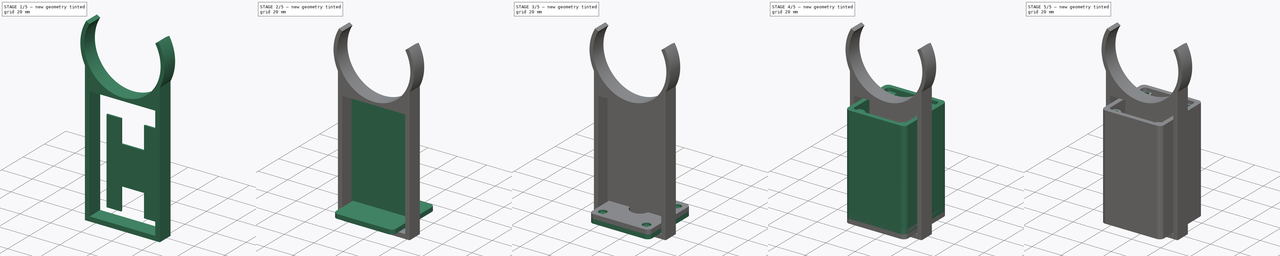
[diagram: build sequence overview — one tinted view per stage of 5, left to right]
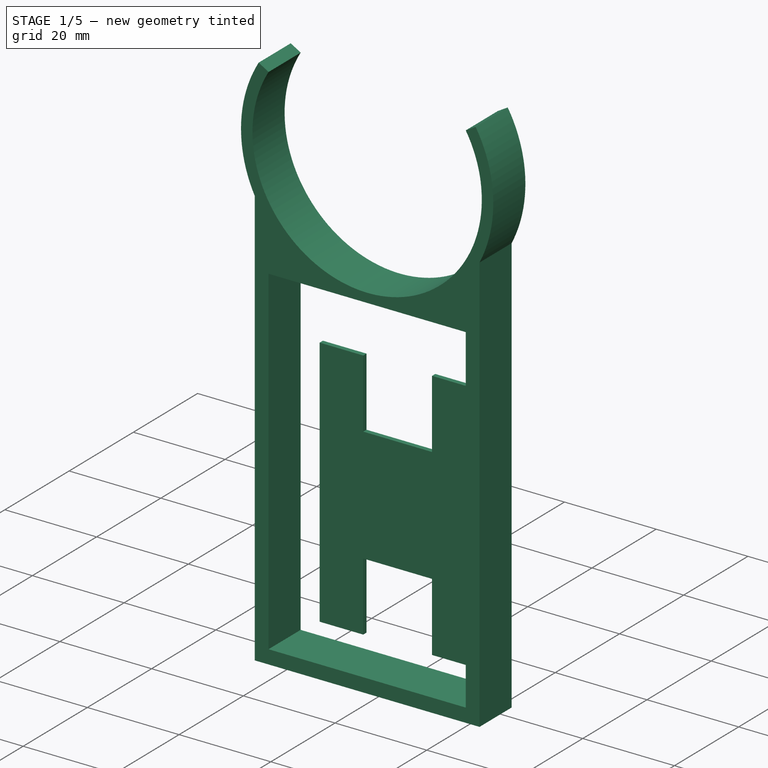
[diagram: stage 1 of 5 — iso view after this stage's code; geometry added in this stage tinted green]
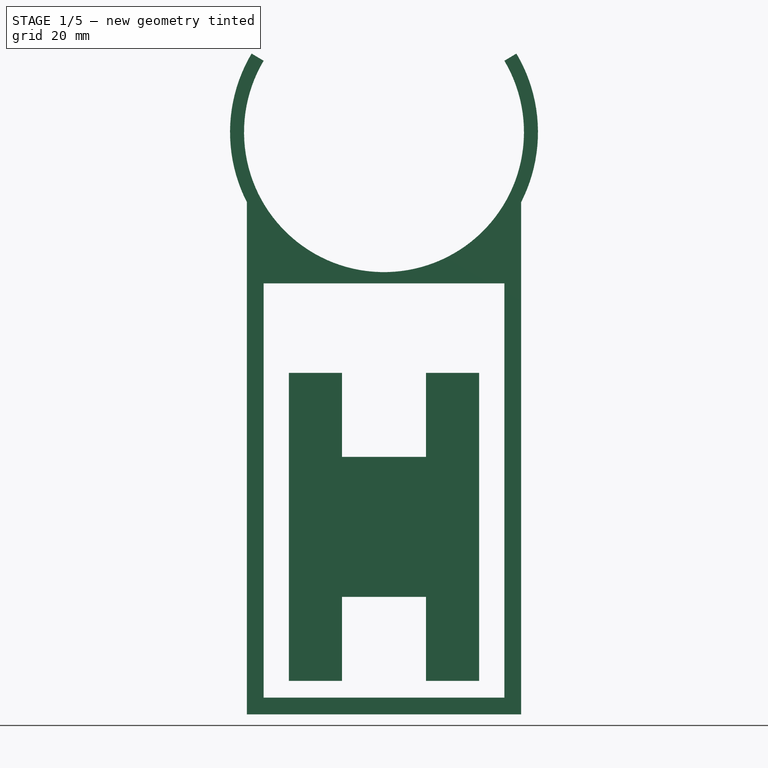
[diagram: stage 1 of 5 — front view after this stage's code; geometry added in this stage tinted green]
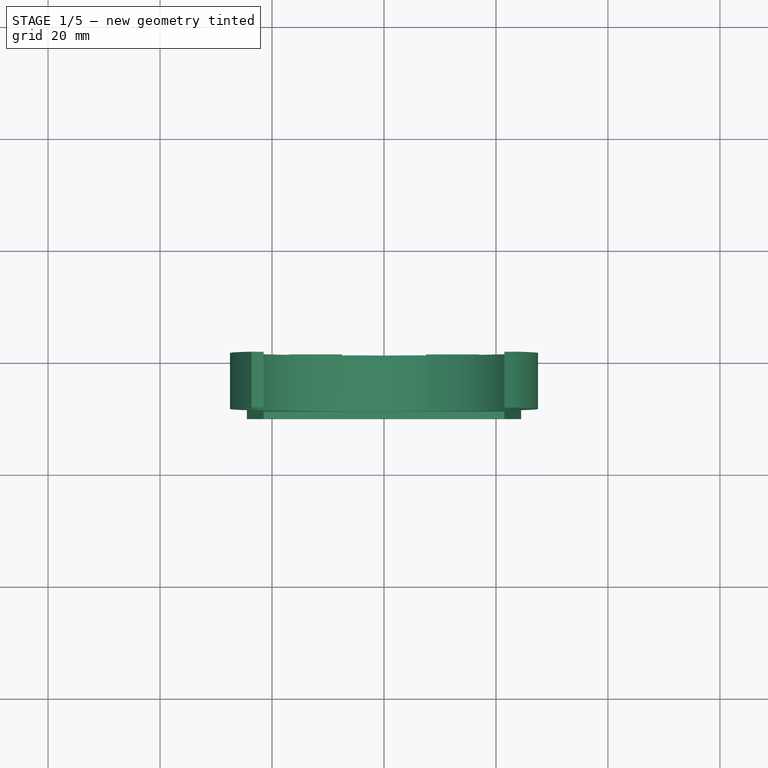
[diagram: stage 1 of 5 — top view after this stage's code; geometry added in this stage tinted green]
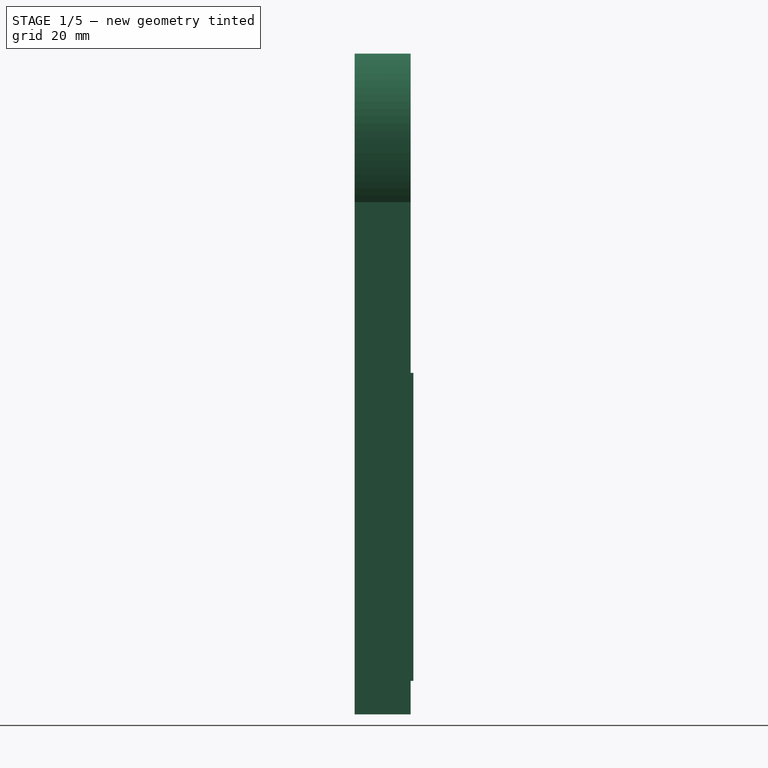
[diagram: stage 1 of 5 — right view after this stage's code; geometry added in this stage tinted green]
FCSTD DOCUMENT  (FreeCAD 0.20R29177 +426 (Git))
Label: PoolPump_Electronics
License: All rights reserved
LicenseURL: http://en.wikipedia.org/wiki/All_rights_reserved
objects: Sketcher::SketchObject×14, PartDesign::Pad×9, PartDesign::Pocket×6, PartDesign::Body×4, PartDesign::Mirrored×2, Spreadsheet::Sheet×1, PartDesign::MultiTransform×1
note: 51 computed .brp shape members not serialized (recipe doc carries the construction recipe); baked Part::Feature solids carry a one-line shape summary decoded from their .brp

FEATURE [PartDesign::Body] Body001  label="Lid"
  Group = -> [Sketch004,Pad003,Sketch005,Pad004,Sketch006,Pocket002,Sketch007,Pocket003,Sketch009,Pocket004]
  Origin = -> Origin001
  Placement = pos=(0,0,67) rot=(0,0,1;0rad)
  Tip = -> Pocket004
  expr: .Placement.Base.z = Spreadsheet.inner_height + Spreadsheet.lid_inreach
FEATURE [Sketcher::SketchObject] Sketch010
  FullyConstrained = true
  MapMode = 5
  Placement = pos=(0,0,0) rot=(1,0,0;1.5708rad)
  Support = -> [XZ_Plane002]
  sketch-geometry (12):
    g0: ArcOfCircle CenterX=3e-16 CenterY=98 CenterZ=0 NormalX=0 NormalY=0 NormalZ=1 AngleXU=0 Radius=25 StartAngle=2.60607 EndAngle=6.81871
    g1: LineSegment StartX=21.5 StartY=110.757 StartZ=0 EndX=23.65 EndY=112.033 EndZ=0
    g2: LineSegment StartX=-21.5 StartY=110.757 StartZ=0 EndX=-23.65 EndY=112.033 EndZ=0
    g3: LineSegment StartX=-21.5 StartY=71 StartZ=0 EndX=-21.5 EndY=-3 EndZ=0
    g4: LineSegment StartX=-21.5 StartY=-3 StartZ=0 EndX=21.5 EndY=-3 EndZ=0
    g5: LineSegment StartX=21.5 StartY=-3 StartZ=0 EndX=21.5 EndY=71 EndZ=0
    g6: LineSegment StartX=24.5 StartY=85.51 StartZ=0 EndX=24.5 EndY=-6 EndZ=0
    g7: LineSegment StartX=24.5 StartY=-6 StartZ=0 EndX=-24.5 EndY=-6 EndZ=0
    g8: LineSegment StartX=-24.5 StartY=-6 StartZ=0 EndX=-24.5 EndY=85.51 EndZ=0
    g9: LineSegment StartX=21.5 StartY=71 StartZ=0 EndX=-21.5 EndY=71 EndZ=0
    g10: ArcOfCircle CenterX=3e-16 CenterY=98 CenterZ=0 NormalX=0 NormalY=0 NormalZ=1 AngleXU=0 Radius=27.5 StartAngle=5.81173 EndAngle=6.81871
    g11: ArcOfCircle CenterX=3e-16 CenterY=98 CenterZ=0 NormalX=0 NormalY=0 NormalZ=1 AngleXU=0 Radius=27.5 StartAngle=2.60607 EndAngle=3.61305
  constraints (34):
    c: Diameter(g0) = 50
    c: Symmetric(g0,g0,g-2)
    c: DistanceX(g0,g0) = 43
    c: Coincident(g1,g0)
    c: Perpendicular(g0,g1)
    c: Coincident(g2,g0)
    c: Perpendicular(g0,g2)
    c: DistanceY(g-1,g0) = 98
    c: Vertical(g3)
    c: Coincident(g3,g4)
    c: Coincident(g4,g5)
    c: Vertical(g5)
    c: Vertical(g6)
    c: Coincident(g6,g7)
    c: Coincident(g7,g8)
    c: Vertical(g8)
    c: Symmetric(g3,g4,g-2)
    c: DistanceX(g4,g4) = 43
    c: DistanceX(g4,g6) = 3
    c: Symmetric(g7,g6,g-2)
    c: DistanceY(g6,g4) = 3
    c: DistanceY(g4,g-1) = 3
    c: DistanceY(g5,g5) = 74
    c: Coincident(g9,g5)
    c: Coincident(g9,g3)
    c: Horizontal(g9)
    c: Coincident(g10,g0)
    c: Coincident(g10,g1)
    c: Coincident(g10,g6)
    c: Coincident(g11,g0)
    c: Coincident(g11,g2)
    c: Coincident(g11,g8)
    c: Diameter(g10) = 55
    c: Equal(g10,g11)
FEATURE [PartDesign::Pad] Pad006
  Direction = (0,-1,2e-16)
  Length = 10
  Length2 = 10
  Placement = pos=(0,0,0) rot=(1,0,0;1.5708rad)
  Profile = -> Sketch010
  ReferenceAxis = -> Sketch010 [N_Axis]
  Type = 0
FEATURE [PartDesign::Body] Body002  label="Mount"
  Group = -> [Sketch010,Pad006,Sketch011,Pad007]
  Origin = -> Origin002
  Placement = pos=(0,21,0) rot=(0,0,1;0rad)
  Tip = -> Pad007
FEATURE [Sketcher::SketchObject] Sketch012
  FullyConstrained = true
  MapMode = 5
  Support = -> [XY_Plane003]
  sketch-geometry (5):
    g0: LineSegment StartX=-17 StartY=0.5 StartZ=0 EndX=-17 EndY=-0.5 EndZ=0
    g1: LineSegment StartX=-17 StartY=-0.5 StartZ=0 EndX=17 EndY=-0.5 EndZ=0
    g2: LineSegment StartX=17 StartY=-0.5 StartZ=0 EndX=17 EndY=0.5 EndZ=0
    g3: LineSegment StartX=17 StartY=0.5 StartZ=0 EndX=-17 EndY=0.5 EndZ=0
    g4: GeomPoint X=0 Y=0 Z=0
  constraints (12):
    c: Coincident(g0,g1)
    c: Coincident(g1,g2)
    c: Coincident(g2,g3)
    c: Coincident(g3,g0)
    c: Horizontal(g1)
    c: Horizontal(g3)
    c: Vertical(g0)
    c: Vertical(g2)
    c: Symmetric(g1,g0,g4)
    c: Coincident(g4,g-1)
    c: DistanceX(g3,g3) = 34
    c: DistanceY(g2,g2) = 1
FEATURE [PartDesign::Pad] Pad008
  Direction = (0,0,1)
  Length = 55
  Length2 = 10
  Profile = -> Sketch012
  ReferenceAxis = -> Sketch012 [N_Axis]
  Type = 0
FEATURE [Sketcher::SketchObject] Sketch013
  FullyConstrained = true
  MapMode = 5
  Placement = pos=(0,0,0) rot=(1,0,0;1.5708rad)
  Support = -> [XZ_Plane003]
  sketch-geometry (10):
    g0: LineSegment StartX=-7.5 StartY=40 StartZ=0 EndX=-7.5 EndY=55 EndZ=0
    g1: LineSegment StartX=-7.5 StartY=55 StartZ=0 EndX=7.5 EndY=55 EndZ=0
    g2: LineSegment StartX=7.5 StartY=55 StartZ=0 EndX=7.5 EndY=40 EndZ=0
    g3: LineSegment StartX=7.5 StartY=40 StartZ=0 EndX=-7.5 EndY=40 EndZ=0
    g4: GeomPoint X=0 Y=47.5 Z=0
    g5: LineSegment StartX=-7.5 StartY=15 StartZ=0 EndX=-7.5 EndY=0 EndZ=0
    g6: LineSegment StartX=-7.5 StartY=0 StartZ=0 EndX=7.5 EndY=0 EndZ=0
    g7: LineSegment StartX=7.5 StartY=0 StartZ=0 EndX=7.5 EndY=15 EndZ=0
    g8: LineSegment StartX=7.5 StartY=15 StartZ=0 EndX=-7.5 EndY=15 EndZ=0
    g9: GeomPoint X=0 Y=7.5 Z=0
  constraints (26):
    c: Coincident(g0,g1)
    c: Coincident(g1,g2)
    c: Coincident(g2,g3)
    c: Coincident(g3,g0)
    c: Horizontal(g1)
    c: Horizontal(g3)
    c: Vertical(g0)
    c: Vertical(g2)
    c: Symmetric(g1,g0,g4)
    c: PointOnObject(g4,g-2)
    c: Coincident(g5,g6)
    c: Coincident(g6,g7)
    c: Coincident(g7,g8)
    c: Coincident(g8,g5)
    c: Horizontal(g6)
    c: Horizontal(g8)
    c: Vertical(g5)
    c: Vertical(g7)
    c: Symmetric(g6,g5,g9)
    c: PointOnObject(g9,g-2)
    c: DistanceY(g7,g7) = 15
    c: DistanceX(g8,g8) = 15
    c: DistanceY(g-1,g6) = 0
    c: Vertical(g5,g0)
    c: DistanceY(g-1,g1) = 55
    c: DistanceY(g2,g2) = 15
FEATURE [PartDesign::Pocket] Pocket005
  BaseFeature = -> Pad008
  Direction = (0,1,-2e-16)
  Length = 5
  Length2 = 5
  Midplane = true
  Profile = -> Sketch013
  ReferenceAxis = -> Sketch013 [N_Axis]
  Type = 1
FEATURE [PartDesign::Body] Body003  label="Divider"
  Group = -> [Sketch012,Pad008,Sketch013,Pocket005]
  Origin = -> Origin003
  Tip = -> Pocket005
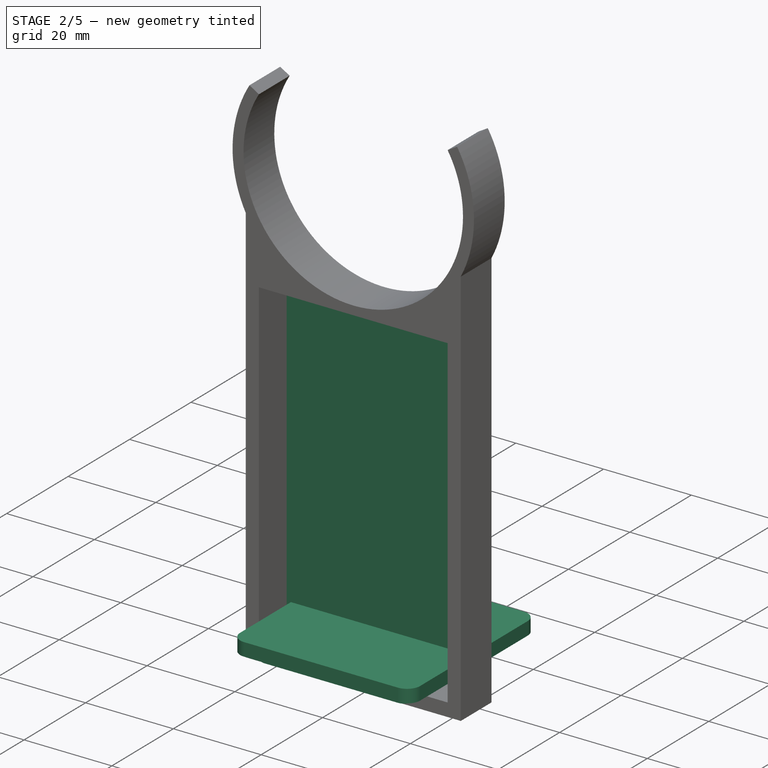
[diagram: stage 2 of 5 — iso view after this stage's code; geometry added in this stage tinted green]
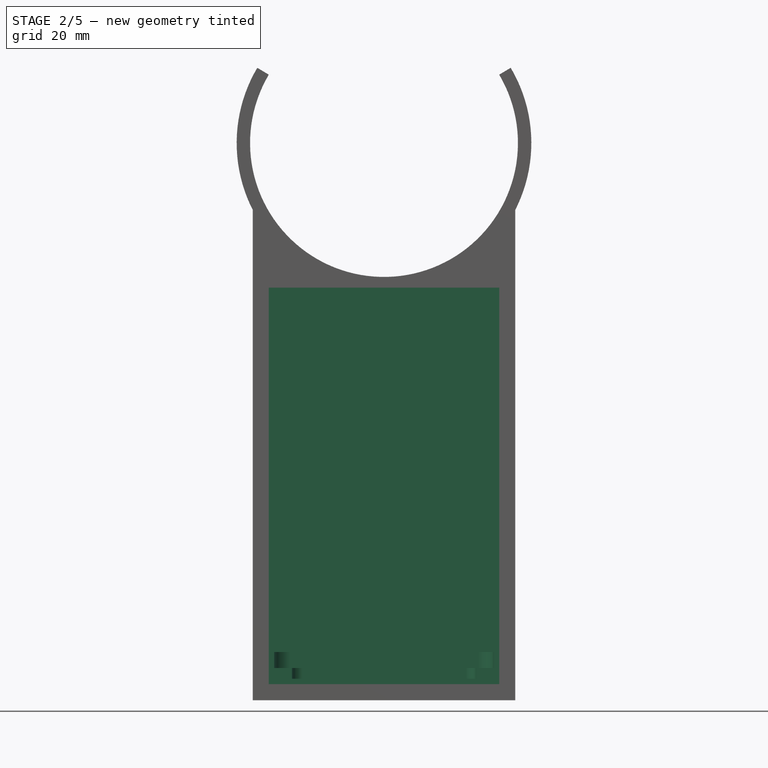
[diagram: stage 2 of 5 — front view after this stage's code; geometry added in this stage tinted green]
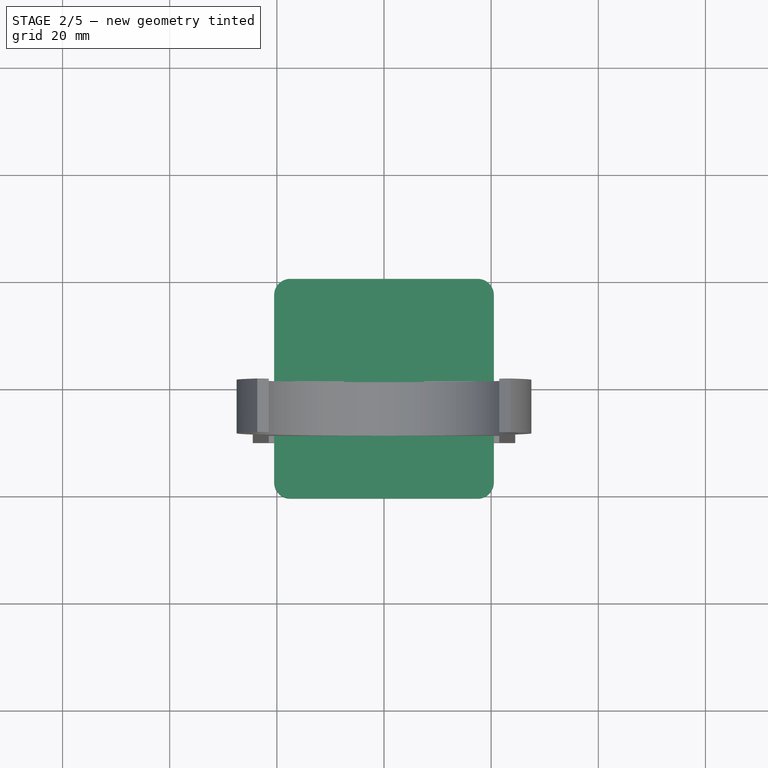
[diagram: stage 2 of 5 — top view after this stage's code; geometry added in this stage tinted green]
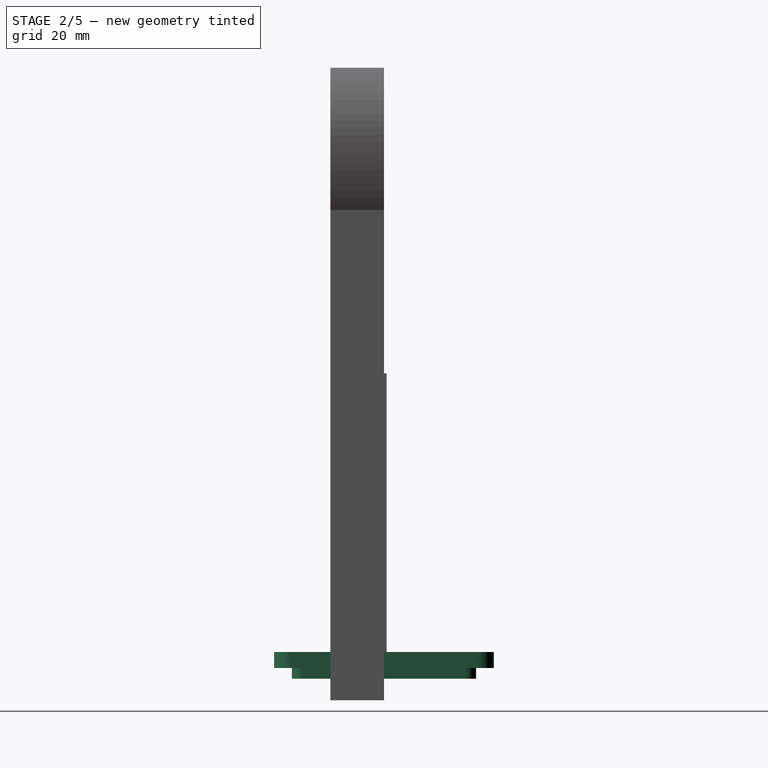
[diagram: stage 2 of 5 — right view after this stage's code; geometry added in this stage tinted green]
FEATURE [Sketcher::SketchObject] Sketch004
  FullyConstrained = true
  MapMode = 5
  Support = -> [XY_Plane001]
  expr: Constraints[13] = Spreadsheet.length
  expr: Constraints[14] = Spreadsheet.width
  expr: Constraints[15] = Spreadsheet.corner_radius
  sketch-geometry (9):
    g0: LineSegment StartX=-20.5 StartY=17.5 StartZ=0 EndX=-20.5 EndY=-17.5 EndZ=0
    g1: LineSegment StartX=-17.5 StartY=-20.5 StartZ=0 EndX=17.5 EndY=-20.5 EndZ=0
    g2: LineSegment StartX=20.5 StartY=-17.5 StartZ=0 EndX=20.5 EndY=17.5 EndZ=0
    g3: LineSegment StartX=17.5 StartY=20.5 StartZ=0 EndX=-17.5 EndY=20.5 EndZ=0
    g4: GeomPoint X=0 Y=0 Z=0
    g5: ArcOfCircle CenterX=-17.5 CenterY=17.5 CenterZ=0 NormalX=0 NormalY=0 NormalZ=1 AngleXU=0 Radius=3 StartAngle=1.5708 EndAngle=3.14159
    g6: ArcOfCircle CenterX=17.5 CenterY=17.5 CenterZ=0 NormalX=0 NormalY=0 NormalZ=1 AngleXU=0 Radius=3 StartAngle=8.57e-14 EndAngle=1.5708
    g7: ArcOfCircle CenterX=17.5 CenterY=-17.5 CenterZ=0 NormalX=0 NormalY=0 NormalZ=1 AngleXU=0 Radius=3 StartAngle=4.71239 EndAngle=6.28319
    g8: ArcOfCircle CenterX=-17.5 CenterY=-17.5 CenterZ=0 NormalX=0 NormalY=0 NormalZ=1 AngleXU=0 Radius=3 StartAngle=3.14159 EndAngle=4.71239
  constraints (20):
    c: Horizontal(g1)
    c: Horizontal(g3)
    c: Vertical(g0)
    c: Vertical(g2)
    c: Coincident(g4,g-1)
    c: Tangent(g0,g5) = -1.5708
    c: Tangent(g3,g5) = -1.5708
    c: Tangent(g3,g6) = -1.5708
    c: Tangent(g2,g6) = -1.5708
    c: Tangent(g2,g7) = -1.5708
    c: Tangent(g1,g7) = -1.5708
    c: Tangent(g0,g8) = -1.5708
    c: Tangent(g1,g8) = -1.5708
    c: DistanceX(g0,g2) = 41
    c: DistanceY(g1,g3) = 41
    c: Radius(g5) = 3
    c: Equal(g5,g6)
    c: Equal(g6,g7)
    c: Equal(g7,g8)
    c: Symmetric(g5,g7,g4)
FEATURE [PartDesign::Pad] Pad003  label="Top"
  Direction = (0,0,1)
  Length = 3
  Length2 = 10
  Profile = -> Sketch004
  ReferenceAxis = -> Sketch004 [N_Axis]
  Type = 0
  expr: Length = Spreadsheet.wall_thickness
FEATURE [Sketcher::SketchObject] Sketch005
  FullyConstrained = true
  MapMode = 5
  Support = -> [XY_Plane001]
  expr: Constraints[13] = Spreadsheet.inner_corner_radius
  expr: Constraints[18] = Spreadsheet.inner_length - Spreadsheet.clearance * 2
  expr: Constraints[19] = Spreadsheet.inner_width - Spreadsheet.clearance * 2
  sketch-geometry (9):
    g0: LineSegment StartX=-17.2 StartY=15.2 StartZ=0 EndX=-17.2 EndY=-15.2 EndZ=0
    g1: LineSegment StartX=-15.2 StartY=-17.2 StartZ=0 EndX=15.2 EndY=-17.2 EndZ=0
    g2: LineSegment StartX=17.2 StartY=-15.2 StartZ=0 EndX=17.2 EndY=15.2 EndZ=0
    g3: LineSegment StartX=15.2 StartY=17.2 StartZ=0 EndX=-15.2 EndY=17.2 EndZ=0
    g4: GeomPoint X=0 Y=0 Z=0
    g5: ArcOfCircle CenterX=-15.2 CenterY=15.2 CenterZ=0 NormalX=0 NormalY=0 NormalZ=1 AngleXU=0 Radius=2 StartAngle=1.5708 EndAngle=3.14159
    g6: ArcOfCircle CenterX=15.2 CenterY=-15.2 CenterZ=0 NormalX=0 NormalY=0 NormalZ=1 AngleXU=0 Radius=2 StartAngle=4.71239 EndAngle=6.28319
    g7: ArcOfCircle CenterX=15.2 CenterY=15.2 CenterZ=0 NormalX=0 NormalY=0 NormalZ=1 AngleXU=0 Radius=2 StartAngle=3e-16 EndAngle=1.5708
    g8: ArcOfCircle CenterX=-15.2 CenterY=-15.2 CenterZ=0 NormalX=0 NormalY=0 NormalZ=1 AngleXU=0 Radius=2 StartAngle=3.14159 EndAngle=4.71239
  constraints (20):
    c: Horizontal(g1)
    c: Horizontal(g3)
    c: Vertical(g0)
    c: Vertical(g2)
    c: Coincident(g4,g-1)
    c: Tangent(g0,g5) = -1.5708
    c: Tangent(g3,g5) = -1.5708
    c: Tangent(g2,g6) = -1.5708
    c: Tangent(g1,g6) = -1.5708
    c: Tangent(g3,g7) = -1.5708
    c: Tangent(g2,g7) = -1.5708
    c: Tangent(g1,g8) = -1.5708
    c: Tangent(g0,g8) = -1.5708
    c: Radius(g5) = 2
    c: Equal(g5,g8)
    c: Equal(g8,g6)
    c: Equal(g6,g7)
    c: Symmetric(g5,g6,g4)
    c: DistanceX(g0,g2) = 34.4
    c: DistanceY(g1,g3) = 34.4
FEATURE [PartDesign::Pad] Pad004  label="lid_inreach"
  BaseFeature = -> Pad003
  Direction = (0,0,1)
  Length = 2
  Length2 = 10
  Profile = -> Sketch005
  ReferenceAxis = -> Sketch005 [N_Axis]
  Reversed = true
  Type = 0
  expr: Length = Spreadsheet.lid_inreach
FEATURE [Sketcher::SketchObject] Sketch011
  ExternalGeometry = -> [Pad006]
  FullyConstrained = true
  MapMode = 5
  Placement = pos=(0,0,0) rot=(1,0,0;1.5708rad)
  Support = -> [XZ_Plane002]
  sketch-geometry (4):
    g0: LineSegment StartX=-21.5 StartY=71 StartZ=0 EndX=21.5 EndY=71 EndZ=0
    g1: LineSegment StartX=21.5 StartY=71 StartZ=0 EndX=21.5 EndY=-3 EndZ=0
    g2: LineSegment StartX=21.5 StartY=-3 StartZ=0 EndX=-21.5 EndY=-3 EndZ=0
    g3: LineSegment StartX=-21.5 StartY=-3 StartZ=0 EndX=-21.5 EndY=71 EndZ=0
  constraints (10):
    c: Coincident(g0,g1)
    c: Coincident(g1,g2)
    c: Coincident(g2,g3)
    c: Coincident(g3,g0)
    c: Horizontal(g0)
    c: Horizontal(g2)
    c: Vertical(g1)
    c: Vertical(g3)
    c: Coincident(g0,g-3)
    c: Coincident(g1,g-4)
FEATURE [PartDesign::Pad] Pad007
  BaseFeature = -> Pad006
  Direction = (0,-1,2e-16)
  Length = 1
  Length2 = 10
  Placement = pos=(0,0,0) rot=(1,0,0;1.5708rad)
  Profile = -> Sketch011
  ReferenceAxis = -> Sketch011 [N_Axis]
  Type = 0
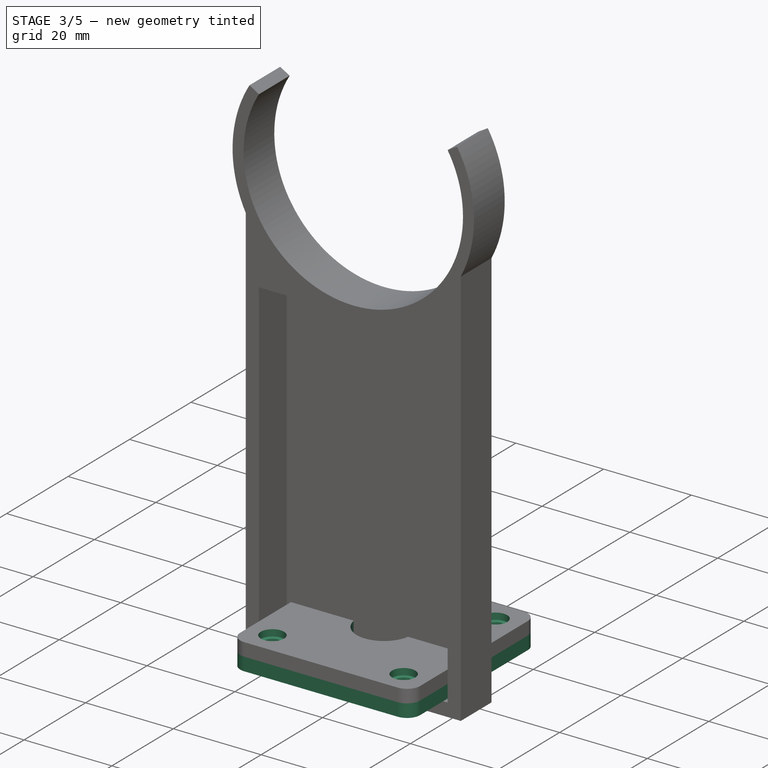
[diagram: stage 3 of 5 — iso view after this stage's code; geometry added in this stage tinted green]
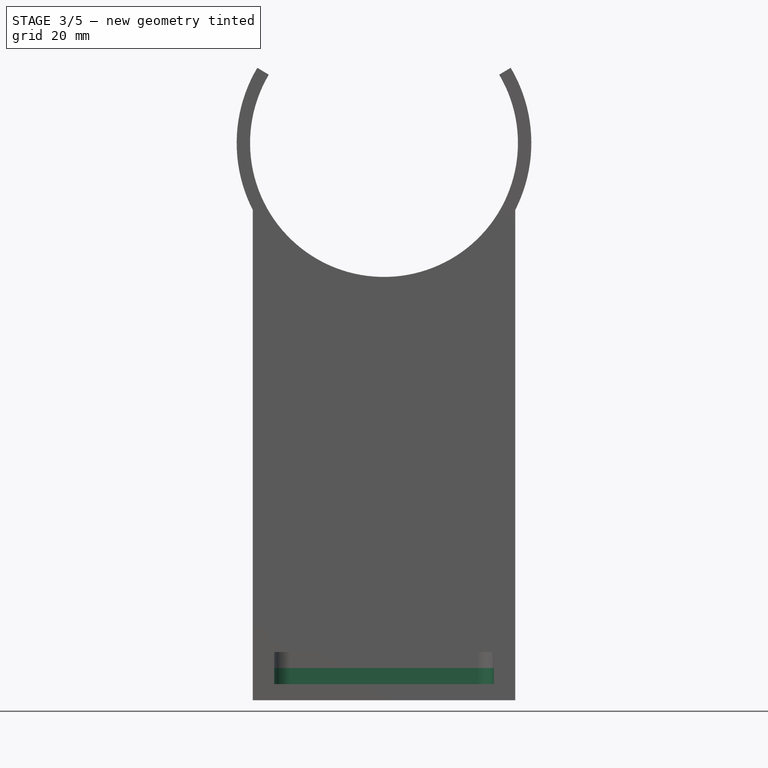
[diagram: stage 3 of 5 — front view after this stage's code; geometry added in this stage tinted green]
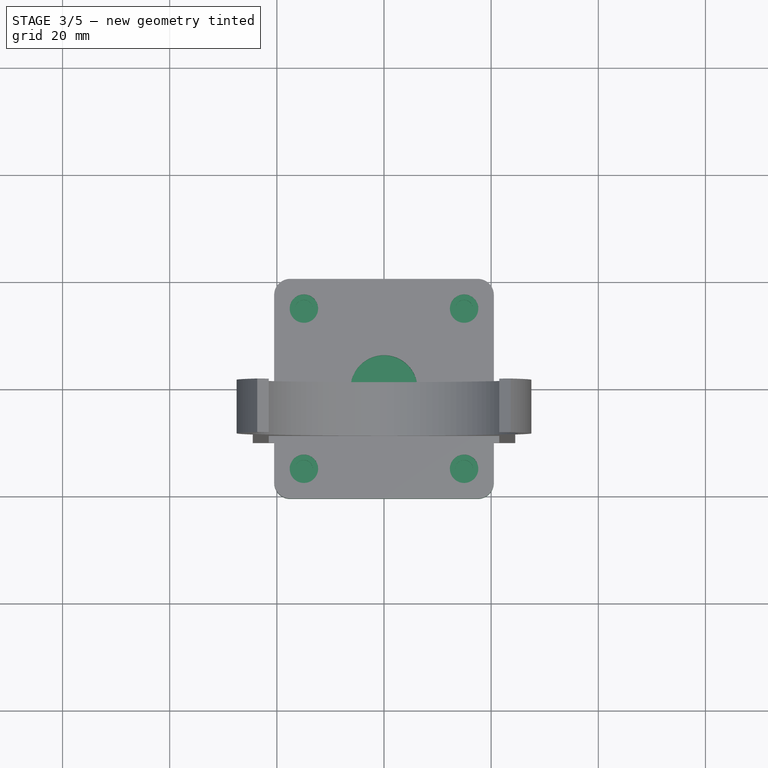
[diagram: stage 3 of 5 — top view after this stage's code; geometry added in this stage tinted green]
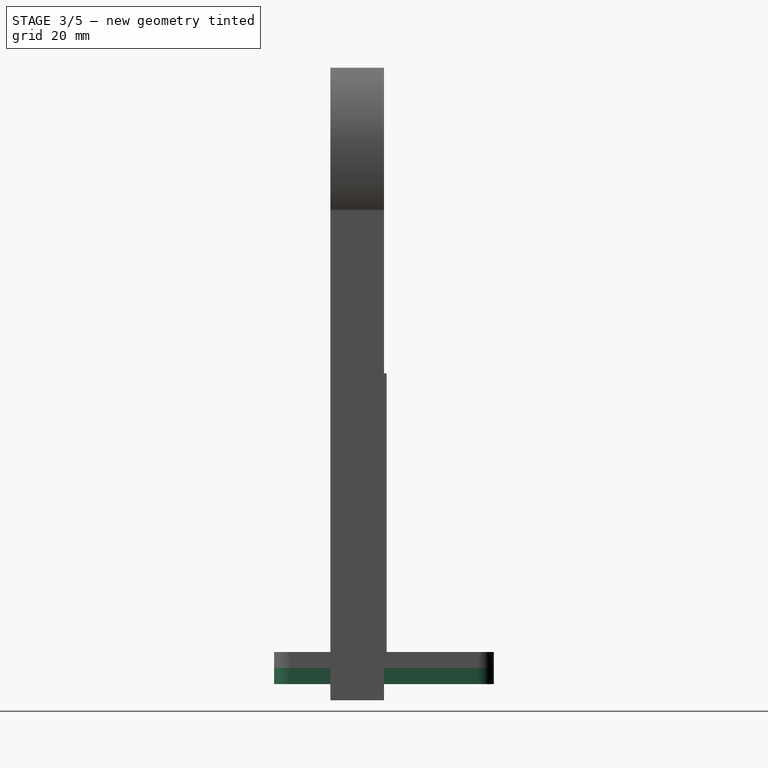
[diagram: stage 3 of 5 — right view after this stage's code; geometry added in this stage tinted green]
FEATURE [Sketcher::SketchObject] Sketch
  FullyConstrained = true
  MapMode = 5
  Support = -> [XY_Plane]
  expr: Constraints[16] = Spreadsheet.corner_radius
  expr: Constraints[17] = Spreadsheet.length
  expr: Constraints[18] = Spreadsheet.width
  sketch-geometry (9):
    g0: LineSegment StartX=-20.5 StartY=17.5 StartZ=0 EndX=-20.5 EndY=-17.5 EndZ=0
    g1: LineSegment StartX=-17.5 StartY=-20.5 StartZ=0 EndX=17.5 EndY=-20.5 EndZ=0
    g2: LineSegment StartX=20.5 StartY=-17.5 StartZ=0 EndX=20.5 EndY=17.5 EndZ=0
    g3: LineSegment StartX=17.5 StartY=20.5 StartZ=0 EndX=-17.5 EndY=20.5 EndZ=0
    g4: GeomPoint X=0 Y=0 Z=0
    g5: ArcOfCircle CenterX=-17.5 CenterY=17.5 CenterZ=0 NormalX=0 NormalY=0 NormalZ=1 AngleXU=0 Radius=3 StartAngle=1.5708 EndAngle=3.14159
    g6: ArcOfCircle CenterX=17.5 CenterY=17.5 CenterZ=0 NormalX=0 NormalY=0 NormalZ=1 AngleXU=0 Radius=3 StartAngle=8.64e-14 EndAngle=1.5708
    g7: ArcOfCircle CenterX=17.5 CenterY=-17.5 CenterZ=0 NormalX=0 NormalY=0 NormalZ=1 AngleXU=0 Radius=3 StartAngle=4.71239 EndAngle=6.28319
    g8: ArcOfCircle CenterX=-17.5 CenterY=-17.5 CenterZ=0 NormalX=0 NormalY=0 NormalZ=1 AngleXU=0 Radius=3 StartAngle=3.14159 EndAngle=4.71239
  constraints (20):
    c: Horizontal(g1)
    c: Horizontal(g3)
    c: Vertical(g0)
    c: Vertical(g2)
    c: Coincident(g4,g-1)
    c: Tangent(g0,g5) = -1.5708
    c: Tangent(g3,g5) = -1.5708
    c: Tangent(g3,g6) = -1.5708
    c: Tangent(g2,g6) = -1.5708
    c: Tangent(g2,g7) = -1.5708
    c: Tangent(g1,g7) = -1.5708
    c: Tangent(g0,g8) = -1.5708
    c: Tangent(g1,g8) = -1.5708
    c: Equal(g5,g6)
    c: Equal(g6,g7)
    c: Equal(g7,g8)
    c: Radius(g5) = 3
    c: DistanceX(g0,g2) = 41
    c: DistanceY(g1,g3) = 41
    c: Symmetric(g5,g7,g4)
FEATURE [Spreadsheet::Sheet] Spreadsheet
  cells = A2=length; B2(length)==B8 + 2 * B5; C2=calculated; A3=width; B3(width)==B9 + 2 * B5; C3=calculated; A4=height; B4(height)==B5 + B10 + B14; C4=calculated; A5=wall_thickness; B5(wall_thickness)==3mm; A6=corner_radius; B6(corner_radius)==3mm; A8=inner_length; B8(inner_length)==35mm; A9=inner_width; B9(inner_width)==35mm; A10=inner_height; B10(inner_height)==65mm; A12=clearance; B12(clearance)==0.3mm; A14=lid_inreach; B14(lid_inreach)==2mm; A16=inner_corner_radius; B16(inner_corner_radius)==B6 - 1mm; C16=calculated; A18=screw_length; B18(screw_length)==B8 - B5 - B22 / 2; C18=calculated; A19=screw_width; B19(screw_width)==B9 - B5 - B22 / 2; C19=calculated; A21=screw_diameter; B21(screw_diameter)==3mm; A22=screw_hole_diameter; B22(screw_hole_diameter)==4.2mm; C22=m3 heated insert; A23=screw_hole_depth; B23(screw_hole_depth)==6mm; C23=m3 heated inset; A25=screw_stand_diameter; B25(screw_stand_diameter)==B22 + 3mm; C25=calculated; A27=screw_head_diameter; B27(screw_head_diameter)==5mm; C27=creates a hole for the screw head, half the wall thickness, set equal to screw_diameter to hide
FEATURE [PartDesign::Pad] Pad  label="Base"
  Direction = (0,0,1)
  Length = 3
  Length2 = 10
  Profile = -> Sketch
  ReferenceAxis = -> Sketch [N_Axis]
  Reversed = true
  Type = 0
  expr: Length = Spreadsheet.wall_thickness
FEATURE [Sketcher::SketchObject] Sketch006
  AttachmentOffset = pos=(0,0,3) rot=(0,0,1;0rad)
  FullyConstrained = true
  MapMode = 5
  Placement = pos=(0,0,3) rot=(0,0,1;0rad)
  Support = -> [XY_Plane001]
  expr: .AttachmentOffset.Base.z = Spreadsheet.wall_thickness
  expr: Constraints[10] = Spreadsheet.screw_diameter + Spreadsheet.clearance
  expr: Constraints[5] = Spreadsheet.screw_length
  expr: Constraints[9] = Spreadsheet.screw_width
  sketch-geometry (4):
    g0: Circle CenterX=-14.95 CenterY=14.95 CenterZ=0 NormalX=0 NormalY=0 NormalZ=1 AngleXU=0 Radius=1.65
    g1: Circle CenterX=14.95 CenterY=14.95 CenterZ=0 NormalX=0 NormalY=0 NormalZ=1 AngleXU=0 Radius=1.65
    g2: Circle CenterX=14.95 CenterY=-14.95 CenterZ=0 NormalX=0 NormalY=0 NormalZ=1 AngleXU=0 Radius=1.65
    g3: Circle CenterX=-14.95 CenterY=-14.95 CenterZ=0 NormalX=0 NormalY=0 NormalZ=1 AngleXU=0 Radius=1.65
  constraints (11):
    c: Symmetric(g0,g2,g-1)
    c: Horizontal(g0,g1)
    c: Horizontal(g3,g2)
    c: Vertical(g1,g2)
    c: Vertical(g0,g3)
    c: DistanceX(g0,g1) = 29.9
    c: Equal(g0,g3)
    c: Equal(g3,g2)
    c: Equal(g2,g1)
    c: DistanceY(g2,g1) = 29.9
    c: Diameter(g0) = 3.3
FEATURE [PartDesign::Pocket] Pocket002  label="- screw holes"
  BaseFeature = -> Pad004
  Direction = (0,0,-1)
  Length = 5
  Length2 = 5
  Profile = -> Sketch006
  ReferenceAxis = -> Sketch006 [N_Axis]
  Type = 1
FEATURE [Sketcher::SketchObject] Sketch007
  AttachmentOffset = pos=(0,0,3) rot=(0,0,1;0rad)
  FullyConstrained = true
  MapMode = 5
  Placement = pos=(0,0,3) rot=(0,0,1;0rad)
  Support = -> [XY_Plane001]
  expr: .AttachmentOffset.Base.z = Spreadsheet.wall_thickness
  expr: Constraints[0] = Spreadsheet.screw_head_diameter + Spreadsheet.clearance
  expr: Constraints[10] = Spreadsheet.screw_width
  expr: Constraints[5] = Spreadsheet.screw_length
  sketch-geometry (4):
    g0: Circle CenterX=-14.95 CenterY=14.95 CenterZ=0 NormalX=0 NormalY=0 NormalZ=1 AngleXU=0 Radius=2.65
    g1: Circle CenterX=14.95 CenterY=14.95 CenterZ=0 NormalX=0 NormalY=0 NormalZ=1 AngleXU=0 Radius=2.65
    g2: Circle CenterX=14.95 CenterY=-14.95 CenterZ=0 NormalX=0 NormalY=0 NormalZ=1 AngleXU=0 Radius=2.65
    g3: Circle CenterX=-14.95 CenterY=-14.95 CenterZ=0 NormalX=0 NormalY=0 NormalZ=1 AngleXU=0 Radius=2.65
  constraints (11):
    c: Diameter(g0) = 5.3
    c: Equal(g0,g3)
    c: Equal(g3,g1)
    c: Equal(g1,g2)
    c: Symmetric(g0,g2,g-1)
    c: DistanceX(g0,g1) = 29.9
    c: Horizontal(g0,g1)
    c: Horizontal(g3,g2)
    c: Vertical(g2,g1)
    c: Vertical(g0,g3)
    c: DistanceY(g3,g0) = 29.9
FEATURE [PartDesign::Pocket] Pocket003  label="- screw head"
  BaseFeature = -> Pocket002
  Direction = (0,0,-1)
  Length = 1.5
  Length2 = 5
  Profile = -> Sketch007
  ReferenceAxis = -> Sketch007 [N_Axis]
  Type = 0
  expr: Length = Spreadsheet.wall_thickness / 2
FEATURE [PartDesign::Body] Body  label="Case"
  Group = -> [Sketch,Pad,Pad001,Sketch001,Pocket,Sketch002,Pad002,Sketch003,Pocket001,Sketch008,Pad005,MultiTransform,Mirrored,Mirrored001]
  Origin = -> Origin
  Tip = -> MultiTransform
FEATURE [Sketcher::SketchObject] Sketch009
  FullyConstrained = true
  MapMode = 5
  Support = -> [XY_Plane001]
  sketch-geometry (1):
    g0: Circle CenterX=0 CenterY=0 CenterZ=0 NormalX=0 NormalY=0 NormalZ=1 AngleXU=0 Radius=6.25
  constraints (2):
    c: Coincident(g0,g-1)
    c: Diameter(g0) = 12.5
FEATURE [PartDesign::Pocket] Pocket004
  BaseFeature = -> Pocket003
  Direction = (0,0,-1)
  Length = 5
  Length2 = 5
  Midplane = true
  Profile = -> Sketch009
  ReferenceAxis = -> Sketch009 [N_Axis]
  Type = 1
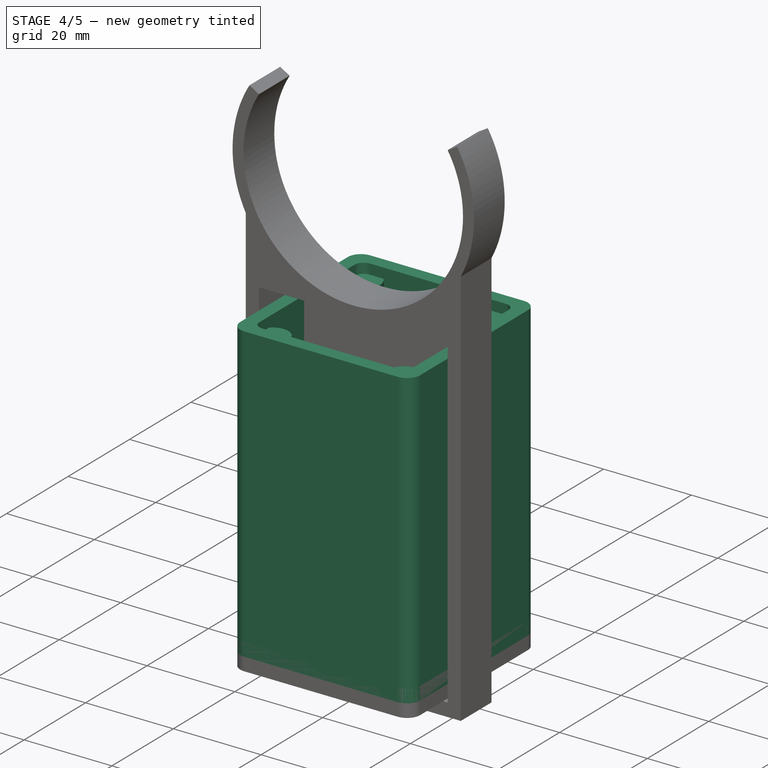
[diagram: stage 4 of 5 — iso view after this stage's code; geometry added in this stage tinted green]
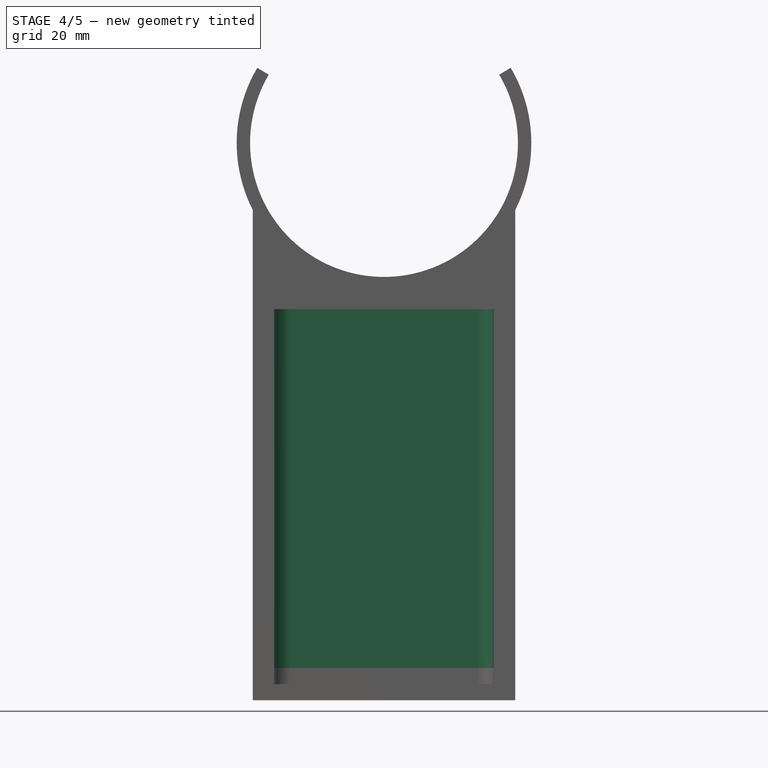
[diagram: stage 4 of 5 — front view after this stage's code; geometry added in this stage tinted green]
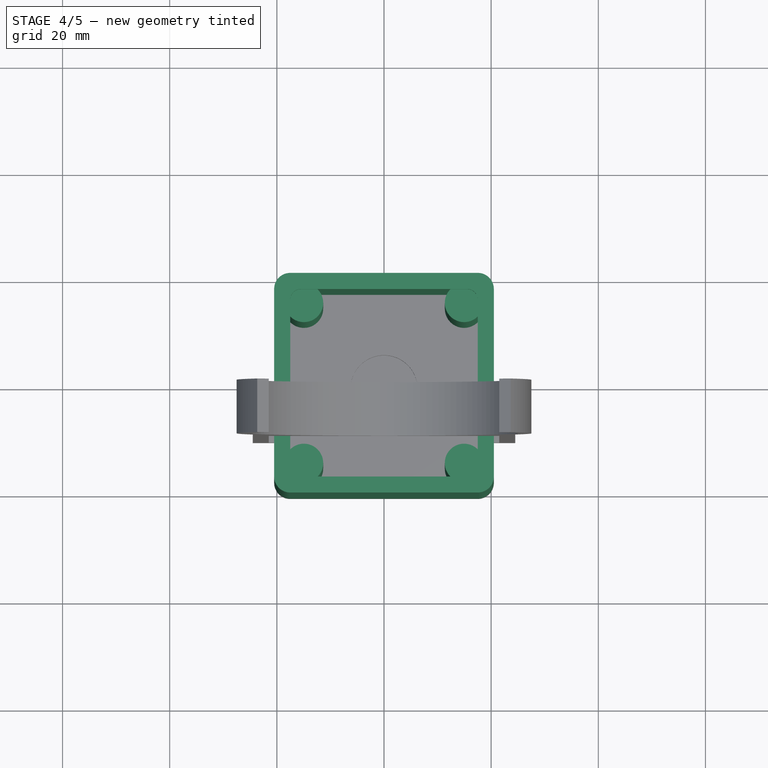
[diagram: stage 4 of 5 — top view after this stage's code; geometry added in this stage tinted green]
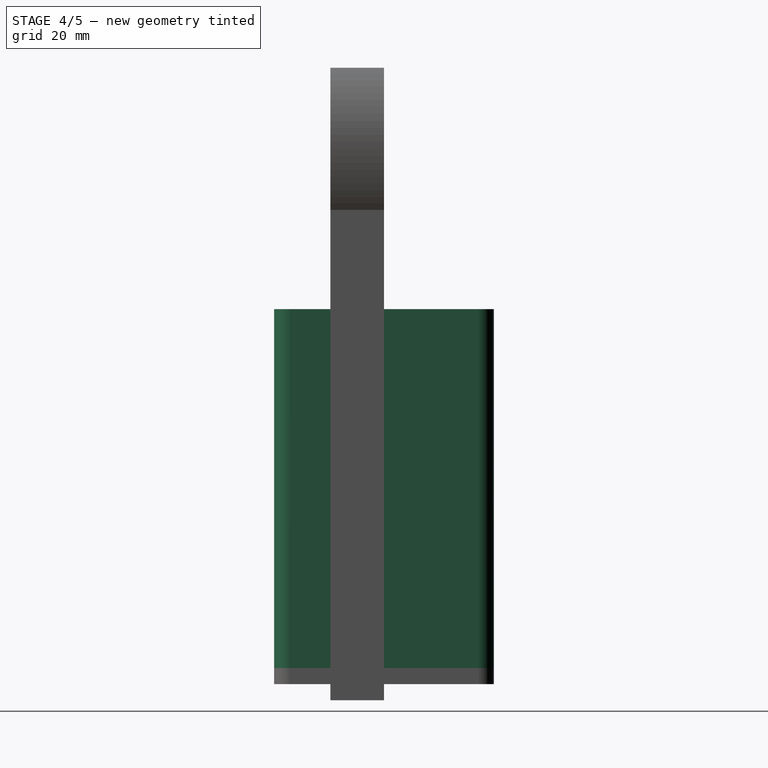
[diagram: stage 4 of 5 — right view after this stage's code; geometry added in this stage tinted green]
FEATURE [PartDesign::Pad] Pad001  label="Case Body"
  BaseFeature = -> Pad
  Direction = (0,0,1)
  Length = 67
  Length2 = 10
  Profile = -> Sketch
  ReferenceAxis = -> Sketch [N_Axis]
  Type = 0
  expr: Length = Spreadsheet.inner_height + Spreadsheet.lid_inreach
FEATURE [Sketcher::SketchObject] Sketch001
  FullyConstrained = true
  MapMode = 5
  Support = -> [XY_Plane]
  expr: Constraints[13] = Spreadsheet.inner_corner_radius
  expr: Constraints[18] = Spreadsheet.inner_width
  expr: Constraints[19] = Spreadsheet.inner_length
  sketch-geometry (9):
    g0: LineSegment StartX=-17.5 StartY=15.5 StartZ=0 EndX=-17.5 EndY=-15.5 EndZ=0
    g1: LineSegment StartX=-15.5 StartY=-17.5 StartZ=0 EndX=15.5 EndY=-17.5 EndZ=0
    g2: LineSegment StartX=17.5 StartY=-15.5 StartZ=0 EndX=17.5 EndY=15.5 EndZ=0
    g3: LineSegment StartX=15.5 StartY=17.5 StartZ=0 EndX=-15.5 EndY=17.5 EndZ=0
    g4: GeomPoint X=0 Y=0 Z=0
    g5: ArcOfCircle CenterX=-15.5 CenterY=15.5 CenterZ=0 NormalX=0 NormalY=0 NormalZ=1 AngleXU=0 Radius=2 StartAngle=1.5708 EndAngle=3.14159
    g6: ArcOfCircle CenterX=15.5 CenterY=15.5 CenterZ=0 NormalX=0 NormalY=0 NormalZ=1 AngleXU=0 Radius=2 StartAngle=0 EndAngle=1.5708
    g7: ArcOfCircle CenterX=15.5 CenterY=-15.5 CenterZ=0 NormalX=0 NormalY=0 NormalZ=1 AngleXU=0 Radius=2 StartAngle=4.71239 EndAngle=6.28319
    g8: ArcOfCircle CenterX=-15.5 CenterY=-15.5 CenterZ=0 NormalX=0 NormalY=0 NormalZ=1 AngleXU=0 Radius=2 StartAngle=3.14159 EndAngle=4.71239
  constraints (20):
    c: Horizontal(g1)
    c: Horizontal(g3)
    c: Vertical(g0)
    c: Vertical(g2)
    c: Coincident(g4,g-1)
    c: Tangent(g0,g5) = -1.5708
    c: Tangent(g3,g5) = -1.5708
    c: Tangent(g3,g6) = -1.5708
    c: Tangent(g2,g6) = -1.5708
    c: Tangent(g1,g7) = -1.5708
    c: Tangent(g2,g7) = -1.5708
    c: Tangent(g0,g8) = -1.5708
    c: Tangent(g1,g8) = -1.5708
    c: Radius(g5) = 2
    c: Equal(g5,g6)
    c: Equal(g6,g7)
    c: Equal(g7,g8)
    c: Symmetric(g5,g7,g4)
    c: DistanceY(g1,g3) = 35
    c: DistanceX(g0,g2) = 35
FEATURE [PartDesign::Pocket] Pocket  label="- hollow"
  BaseFeature = -> Pad001
  Direction = (0,0,-1)
  Length = 5
  Length2 = 5
  Profile = -> Sketch001
  ReferenceAxis = -> Sketch001 [N_Axis]
  Reversed = true
  Type = 1
FEATURE [Sketcher::SketchObject] Sketch002
  FullyConstrained = true
  MapMode = 5
  Support = -> [XY_Plane]
  expr: Constraints[10] = Spreadsheet.screw_width
  expr: Constraints[5] = Spreadsheet.screw_stand_diameter
  expr: Constraints[9] = Spreadsheet.screw_length
  sketch-geometry (4):
    g0: Circle CenterX=-14.95 CenterY=14.95 CenterZ=0 NormalX=0 NormalY=0 NormalZ=1 AngleXU=0 Radius=3.6
    g1: Circle CenterX=14.95 CenterY=14.95 CenterZ=0 NormalX=0 NormalY=0 NormalZ=1 AngleXU=0 Radius=3.6
    g2: Circle CenterX=-14.95 CenterY=-14.95 CenterZ=0 NormalX=0 NormalY=0 NormalZ=1 AngleXU=0 Radius=3.6
    g3: Circle CenterX=14.95 CenterY=-14.95 CenterZ=0 NormalX=0 NormalY=0 NormalZ=1 AngleXU=0 Radius=3.6
  constraints (11):
    c: Symmetric(g0,g3,g-1)
    c: Horizontal(g0,g1)
    c: Horizontal(g2,g3)
    c: Vertical(g1,g3)
    c: Vertical(g2,g0)
    c: Diameter(g0) = 7.2
    c: Equal(g0,g1)
    c: Equal(g1,g3)
    c: Equal(g3,g2)
    c: DistanceX(g0,g1) = 29.9
    c: DistanceY(g2,g0) = 29.9
FEATURE [PartDesign::Pad] Pad002  label="+ScrewStands"
  BaseFeature = -> Pocket
  Direction = (0,0,1)
  Length = 64.7
  Length2 = 10
  Profile = -> Sketch002
  ReferenceAxis = -> Sketch002 [N_Axis]
  Type = 0
  expr: Length = Spreadsheet.inner_height - Spreadsheet.clearance
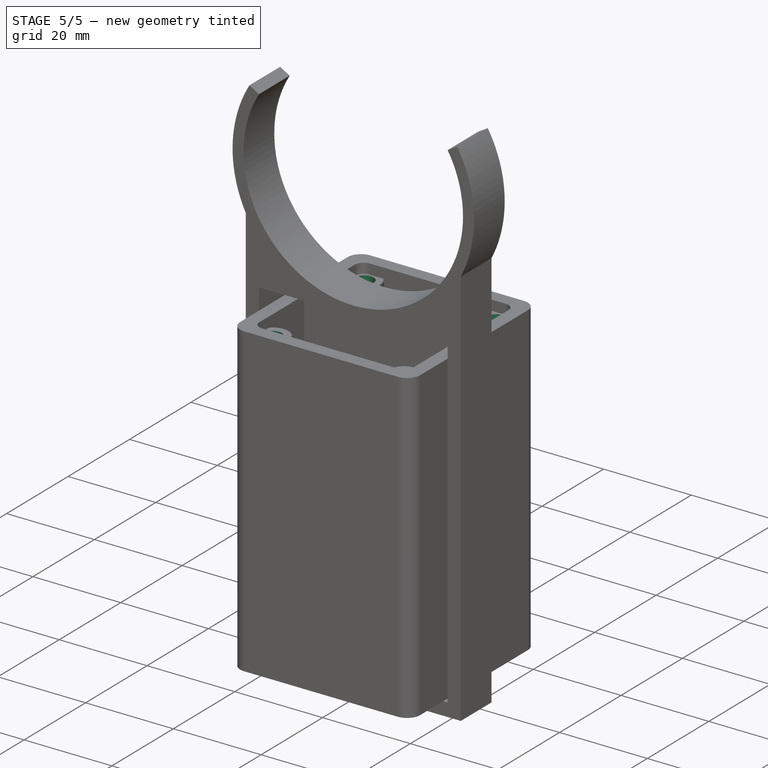
[diagram: stage 5 of 5 — iso view after this stage's code; geometry added in this stage tinted green]
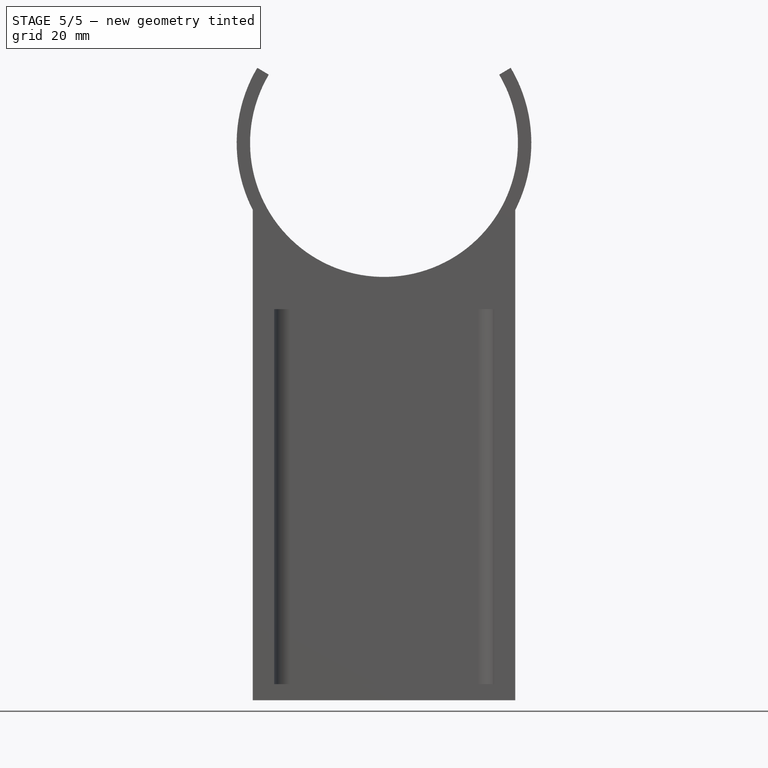
[diagram: stage 5 of 5 — front view after this stage's code; geometry added in this stage tinted green]
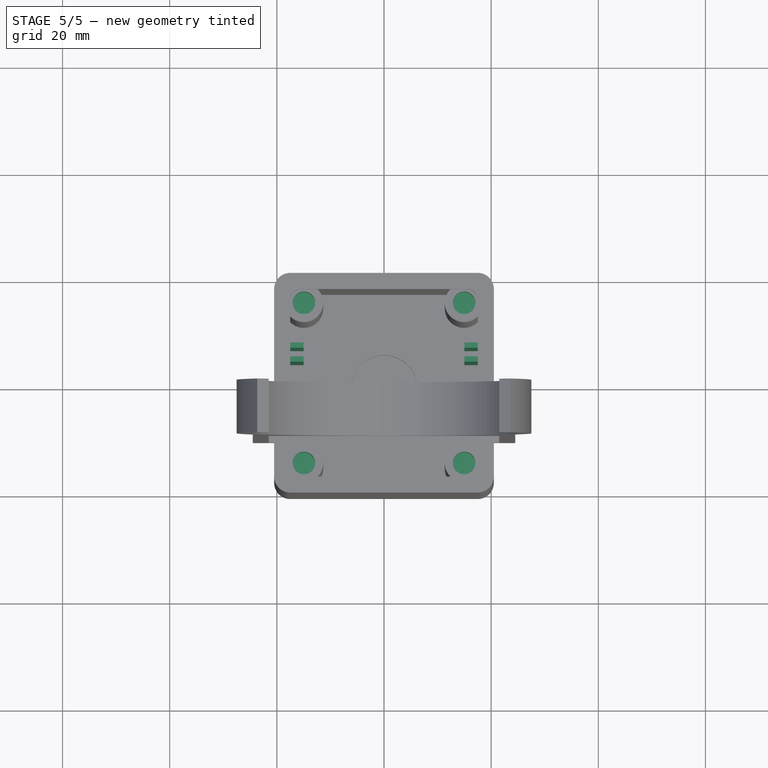
[diagram: stage 5 of 5 — top view after this stage's code; geometry added in this stage tinted green]
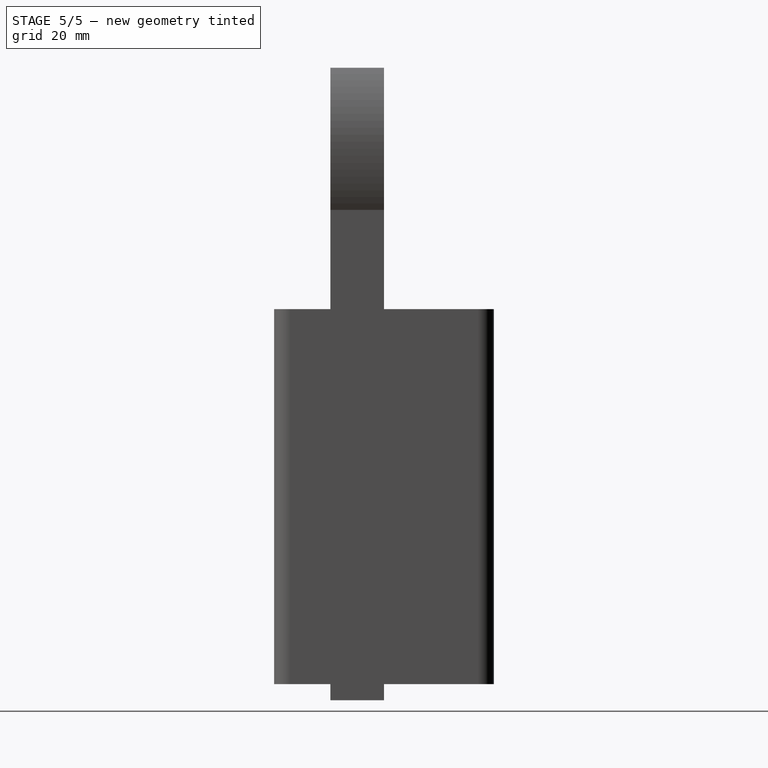
[diagram: stage 5 of 5 — right view after this stage's code; geometry added in this stage tinted green]
FEATURE [Sketcher::SketchObject] Sketch003
  AttachmentOffset = pos=(0,0,64.7) rot=(0,0,1;0rad)
  FullyConstrained = true
  MapMode = 5
  Placement = pos=(0,0,64.7) rot=(0,0,1;0rad)
  Support = -> [XY_Plane]
  expr: .AttachmentOffset.Base.z = Spreadsheet.inner_height - Spreadsheet.clearance
  expr: Constraints[5] = Spreadsheet.screw_length
  expr: Constraints[6] = Spreadsheet.screw_width
  expr: Constraints[7] = <<Spreadsheet>>.screw_hole_diameter
  sketch-geometry (4):
    g0: Circle CenterX=-14.95 CenterY=14.95 CenterZ=0 NormalX=0 NormalY=0 NormalZ=1 AngleXU=0 Radius=2.1
    g1: Circle CenterX=14.95 CenterY=14.95 CenterZ=0 NormalX=0 NormalY=0 NormalZ=1 AngleXU=0 Radius=2.1
    g2: Circle CenterX=-14.95 CenterY=-14.95 CenterZ=0 NormalX=0 NormalY=0 NormalZ=1 AngleXU=0 Radius=2.1
    g3: Circle CenterX=14.95 CenterY=-14.95 CenterZ=0 NormalX=0 NormalY=0 NormalZ=1 AngleXU=0 Radius=2.1
  constraints (11):
    c: Vertical(g0,g2)
    c: Vertical(g1,g3)
    c: Horizontal(g0,g1)
    c: Horizontal(g2,g3)
    c: Symmetric(g0,g3,g-1)
    c: DistanceX(g0,g1) = 29.9
    c: DistanceY(g2,g0) = 29.9
    c: Diameter(g0) = 4.2
    c: Equal(g0,g2)
    c: Equal(g2,g1)
    c: Equal(g1,g3)
FEATURE [PartDesign::Pocket] Pocket001
  BaseFeature = -> Pad002
  Direction = (0,0,-1)
  Length = 6
  Length2 = 5
  Profile = -> Sketch003
  ReferenceAxis = -> Sketch003 [N_Axis]
  Type = 0
  expr: Length = Spreadsheet.screw_hole_depth
FEATURE [Sketcher::SketchObject] Sketch008
  FullyConstrained = true
  MapMode = 5
  Support = -> [XY_Plane]
  sketch-geometry (8):
    g0: LineSegment StartX=-17.5 StartY=8 StartZ=0 EndX=-15 EndY=8 EndZ=0
    g1: LineSegment StartX=-15 StartY=8 StartZ=0 EndX=-15 EndY=7 EndZ=0
    g2: LineSegment StartX=-15 StartY=7 StartZ=0 EndX=-17.5 EndY=7 EndZ=0
    g3: LineSegment StartX=-17.5 StartY=7 StartZ=0 EndX=-17.5 EndY=8 EndZ=0
    g4: LineSegment StartX=-17.5 StartY=5.4 StartZ=0 EndX=-15 EndY=5.4 EndZ=0
    g5: LineSegment StartX=-15 StartY=5.4 StartZ=0 EndX=-15 EndY=4.4 EndZ=0
    g6: LineSegment StartX=-15 StartY=4.4 StartZ=0 EndX=-17.5 EndY=4.4 EndZ=0
    g7: LineSegment StartX=-17.5 StartY=4.4 StartZ=0 EndX=-17.5 EndY=5.4 EndZ=0
  constraints (24):
    c: Coincident(g0,g1)
    c: Coincident(g1,g2)
    c: Coincident(g2,g3)
    c: Coincident(g3,g0)
    c: Horizontal(g0)
    c: Horizontal(g2)
    c: Vertical(g1)
    c: Vertical(g3)
    c: DistanceX(g0,g-1) = 17.5
    c: DistanceY(g1,g1) = 1
    c: DistanceX(g0,g0) = 2.5
    c: DistanceY(g-1,g0) = 8
    c: Coincident(g4,g5)
    c: Coincident(g5,g6)
    c: Coincident(g6,g7)
    c: Coincident(g7,g4)
    c: Horizontal(g4)
    c: Horizontal(g6)
    c: Vertical(g5)
    c: Vertical(g7)
    c: Vertical(g4,g2)
    c: Vertical(g1,g4)
    c: DistanceY(g4,g1) = 1.6
    c: DistanceY(g5,g5) = 1
FEATURE [PartDesign::Pad] Pad005  label="DividerGuides"
  BaseFeature = -> Pocket001
  Direction = (0,0,1)
  Length = 40
  Length2 = 10
  Profile = -> Sketch008
  ReferenceAxis = -> Sketch008 [N_Axis]
  Type = 0
FEATURE [PartDesign::Mirrored] Mirrored
  MirrorPlane = -> Sketch008 [V_Axis]
FEATURE [PartDesign::Mirrored] Mirrored001
  MirrorPlane = -> Sketch008 [H_Axis]
FEATURE [PartDesign::MultiTransform] MultiTransform  label="Mo"
  BaseFeature = -> Pad005
  Originals = -> [Pad005]
  Transformations = -> [Mirrored,Mirrored001]
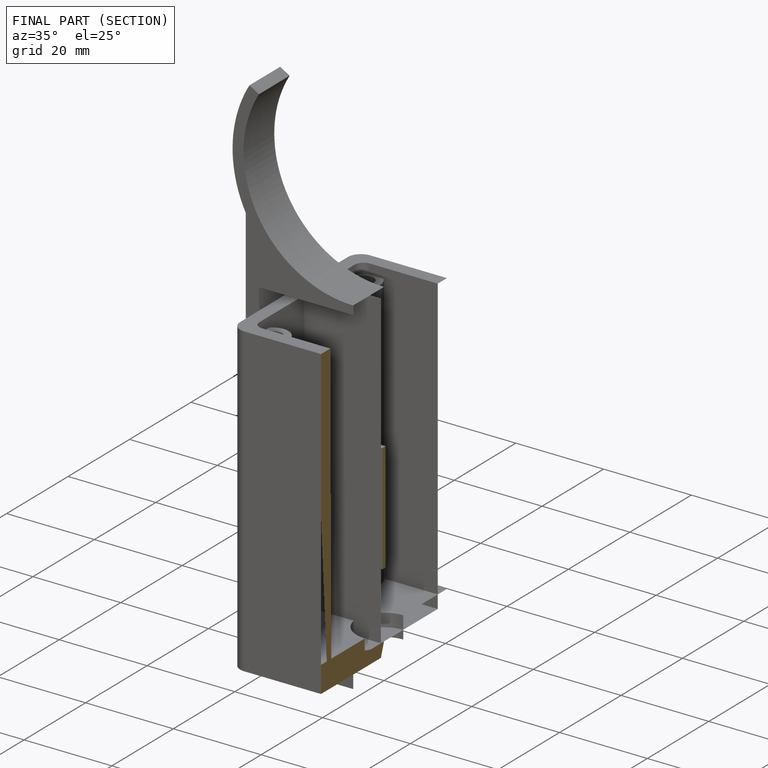
[diagram: finished part — half-section view (interior)]
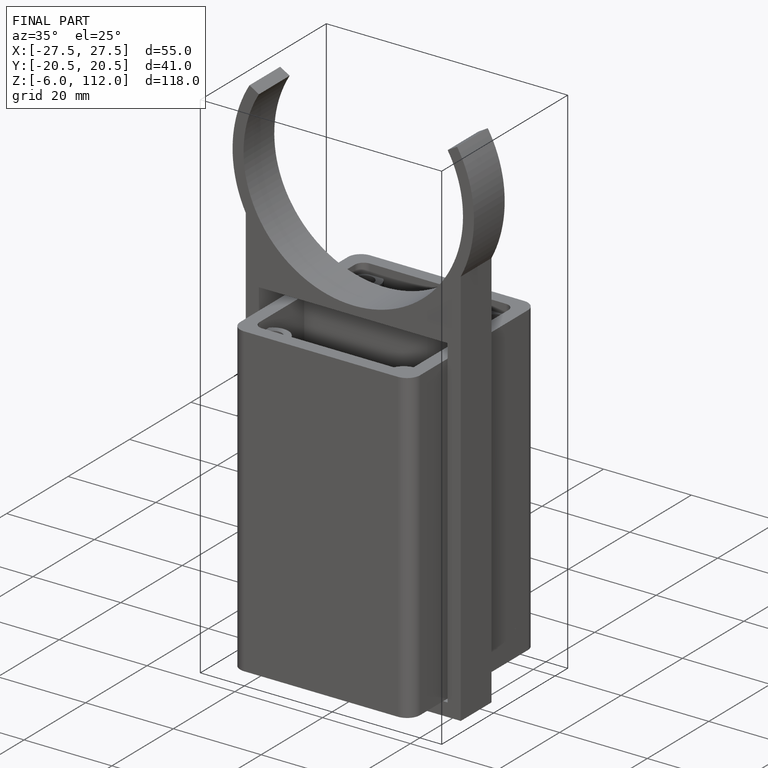
[diagram: finished part — iso view with bounding-box wireframe]
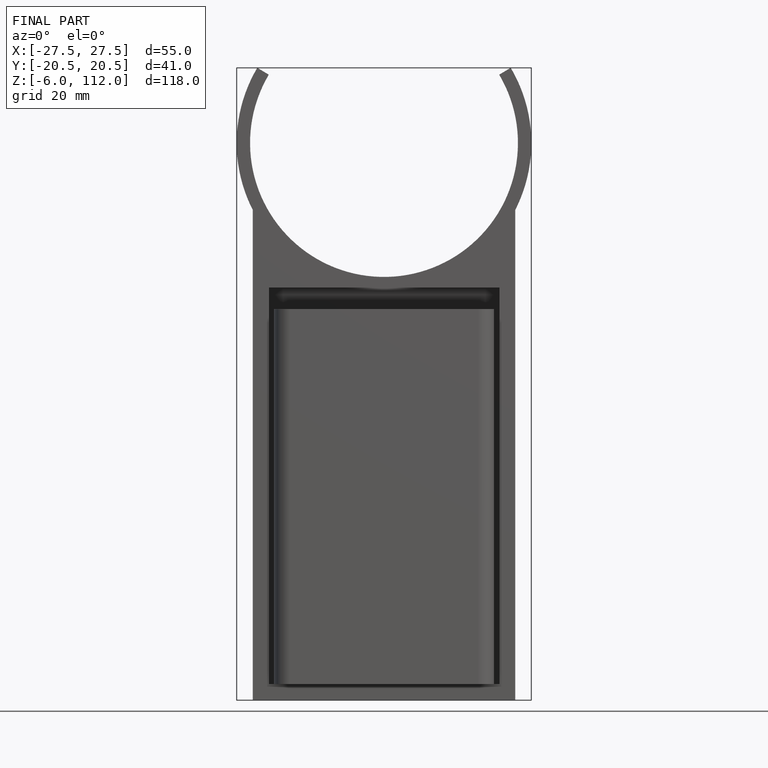
[diagram: finished part — front view with bounding-box wireframe]
